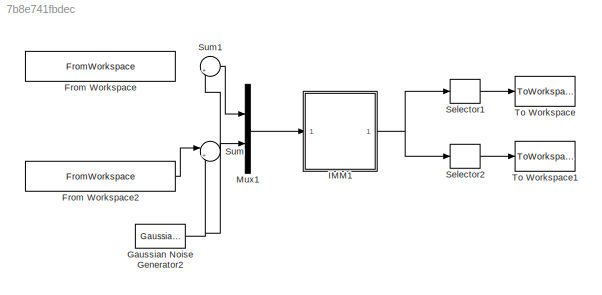
MODEL slx_7b8e741fbdec
KIND model
BLOCK [FromWorkspace] From Workspace
  SampleTime = 0
  VariableName = [obv_traj1(:,1),obv_traj1(:,2)]
BLOCK [FromWorkspace] From Workspace2
  SampleTime = 0
  VariableName = [obv_traj1(:,1),obv_traj1(:,3)]
BLOCK [Reference] Gaussian Noise Generator2  REF=commnoisgen2/Gaussian Noise
Generator
  Ports = [0, 1]
  SourceBlock = commnoisgen2/Gaussian Noise\nGenerator
  SourceType = Gaussian Noise Generator
  Ts = 0.05
  d = noise
  frameBased = off
  m = 0
  orient = off
  outDataType = double
  s = 0
  sampPerFrame = 1
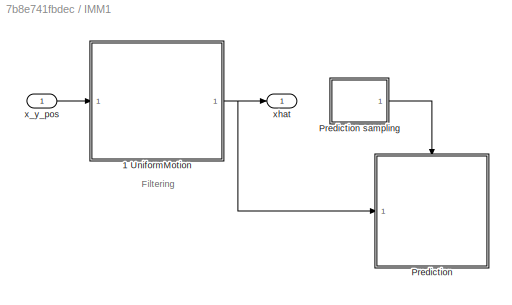
BLOCK [SubSystem] IMM1
  FunctionWithSeparateData = off
  MaskHideContents = off
  MinAlgLoopOccurrences = off
  Opaque = off
  Ports = [1, 1]
  PropExecContextOutsideSubsystem = off
  RTWSystemCode = Auto
  RequestExecContextInheritance = off
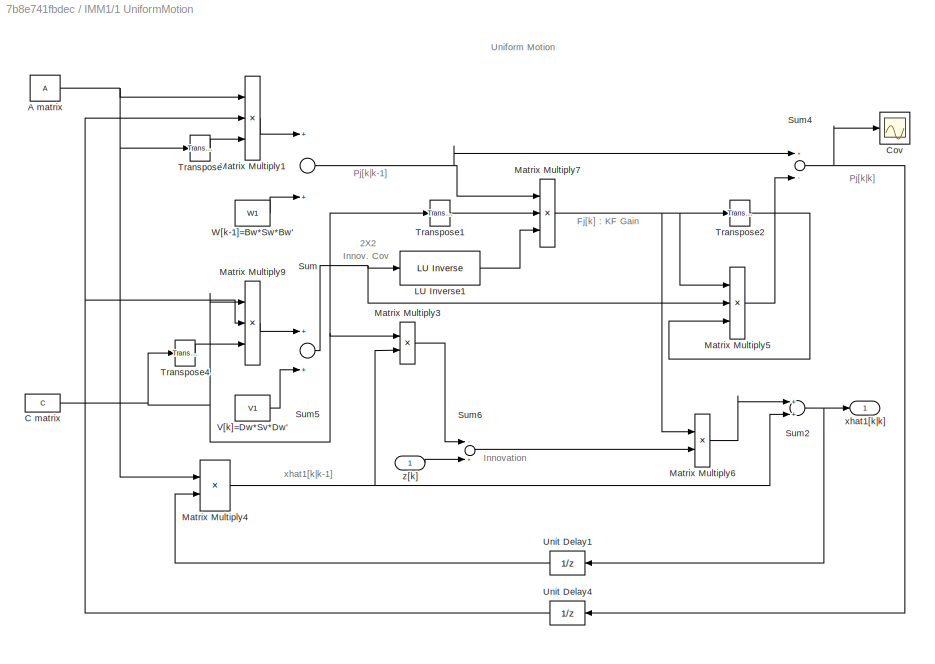
BLOCK [SubSystem] IMM1/1 UniformMotion 
  FunctionWithSeparateData = off
  MaskHideContents = off
  MinAlgLoopOccurrences = off
  Opaque = off
  Ports = [1, 1]
  PropExecContextOutsideSubsystem = off
  RTWSystemCode = Auto
  RequestExecContextInheritance = off
BLOCK [Reference] IMM1/1 UniformMotion / LU Inverse1  REF=dspinverses/ LU Inverse
  Ports = [1, 1]
  SourceBlock = dspinverses/ LU Inverse
  SourceType = LU Inverse
BLOCK [Constant] IMM1/1 UniformMotion /A matrix
  Value = A
BLOCK [Constant] IMM1/1 UniformMotion /C matrix
  Value = C
BLOCK [Scope] IMM1/1 UniformMotion /Cov
  DataFormat = StructureWithTime
  Floating = off
  NumInputPorts = 1
  Ports = [1]
  SampleTime = 0
  SaveName = ScopeData3
  ShowLegends = off
BLOCK [Product] IMM1/1 UniformMotion /Matrix Multiply1
  InputSameDT = off
  Inputs = 3
  Multiplication = Matrix(*)
  OutDataTypeStr = Inherit: Inherit via internal rule
  Ports = [3, 1]
  RndMeth = Floor
  SaturateOnIntegerOverflow = off
BLOCK [Product] IMM1/1 UniformMotion /Matrix Multiply3
  InputSameDT = off
  Multiplication = Matrix(*)
  OutDataTypeStr = Inherit: Inherit via internal rule
  Ports = [2, 1]
  RndMeth = Floor
  SaturateOnIntegerOverflow = off
BLOCK [Product] IMM1/1 UniformMotion /Matrix Multiply4
  InputSameDT = off
  Multiplication = Matrix(*)
  OutDataTypeStr = Inherit: Inherit via internal rule
  Ports = [2, 1]
  RndMeth = Floor
  SaturateOnIntegerOverflow = off
BLOCK [Product] IMM1/1 UniformMotion /Matrix Multiply5
  InputSameDT = off
  Inputs = 3
  Multiplication = Matrix(*)
  OutDataTypeStr = Inherit: Inherit via internal rule
  Ports = [3, 1]
  RndMeth = Floor
  SaturateOnIntegerOverflow = off
BLOCK [Product] IMM1/1 UniformMotion /Matrix Multiply6
  InputSameDT = off
  Multiplication = Matrix(*)
  OutDataTypeStr = Inherit: Inherit via internal rule
  Ports = [2, 1]
  RndMeth = Floor
  SaturateOnIntegerOverflow = off
BLOCK [Product] IMM1/1 UniformMotion /Matrix Multiply7
  InputSameDT = off
  Inputs = 3
  Multiplication = Matrix(*)
  OutDataTypeStr = Inherit: Inherit via internal rule
  Ports = [3, 1]
  RndMeth = Floor
  SaturateOnIntegerOverflow = off
BLOCK [Product] IMM1/1 UniformMotion /Matrix Multiply9
  InputSameDT = off
  Inputs = 3
  Multiplication = Matrix(*)
  OutDataTypeStr = Inherit: Inherit via internal rule
  Ports = [3, 1]
  RndMeth = Floor
  SaturateOnIntegerOverflow = off
BLOCK [Sum] IMM1/1 UniformMotion /Sum
  InputSameDT = off
  OutDataTypeStr = Inherit: Inherit via internal rule
  Ports = [2, 1]
BLOCK [Sum] IMM1/1 UniformMotion /Sum2
  InputSameDT = off
  OutDataTypeStr = Inherit: Inherit via internal rule
  Ports = [2, 1]
BLOCK [Sum] IMM1/1 UniformMotion /Sum4
  InputSameDT = off
  Inputs = +-
  OutDataTypeStr = Inherit: Inherit via internal rule
  Ports = [2, 1]
BLOCK [Sum] IMM1/1 UniformMotion /Sum5
  InputSameDT = off
  OutDataTypeStr = Inherit: Inherit via internal rule
  Ports = [2, 1]
BLOCK [Sum] IMM1/1 UniformMotion /Sum6
  InputSameDT = off
  Inputs = -+
  OutDataTypeStr = Inherit: Inherit via internal rule
  Ports = [2, 1]
BLOCK [Reference] IMM1/1 UniformMotion /Transpose  REF=dspmtrx3/Transpose
  Hermitian = off
  Ports = [1, 1]
  SourceBlock = dspmtrx3/Transpose
  SourceType = Transpose
  overflowFlag = off
BLOCK [Reference] IMM1/1 UniformMotion /Transpose1  REF=dspmtrx3/Transpose
  Hermitian = off
  Ports = [1, 1]
  SourceBlock = dspmtrx3/Transpose
  SourceType = Transpose
  overflowFlag = off
BLOCK [Reference] IMM1/1 UniformMotion /Transpose2  REF=dspmtrx3/Transpose
  Hermitian = off
  Ports = [1, 1]
  SourceBlock = dspmtrx3/Transpose
  SourceType = Transpose
  overflowFlag = off
BLOCK [Reference] IMM1/1 UniformMotion /Transpose4  REF=dspmtrx3/Transpose
  Hermitian = off
  Ports = [1, 1]
  SourceBlock = dspmtrx3/Transpose
  SourceType = Transpose
  overflowFlag = off
BLOCK [UnitDelay] IMM1/1 UniformMotion /Unit Delay1
  InitialCondition = xhat_init
  SampleTime = -1
BLOCK [UnitDelay] IMM1/1 UniformMotion /Unit Delay4
  InitialCondition = P_init
  SampleTime = -1
BLOCK [Constant] IMM1/1 UniformMotion /V[k]=Dw*Sv*Dw'
  Value = V1
BLOCK [Constant] IMM1/1 UniformMotion /W[k-1]=Bw*Sw*Bw' 
  Value = W1
BLOCK [Outport] IMM1/1 UniformMotion /xhat1[k|k]
  IconDisplay = Port number
BLOCK [Inport] IMM1/1 UniformMotion /z[k]
  IconDisplay = Port number
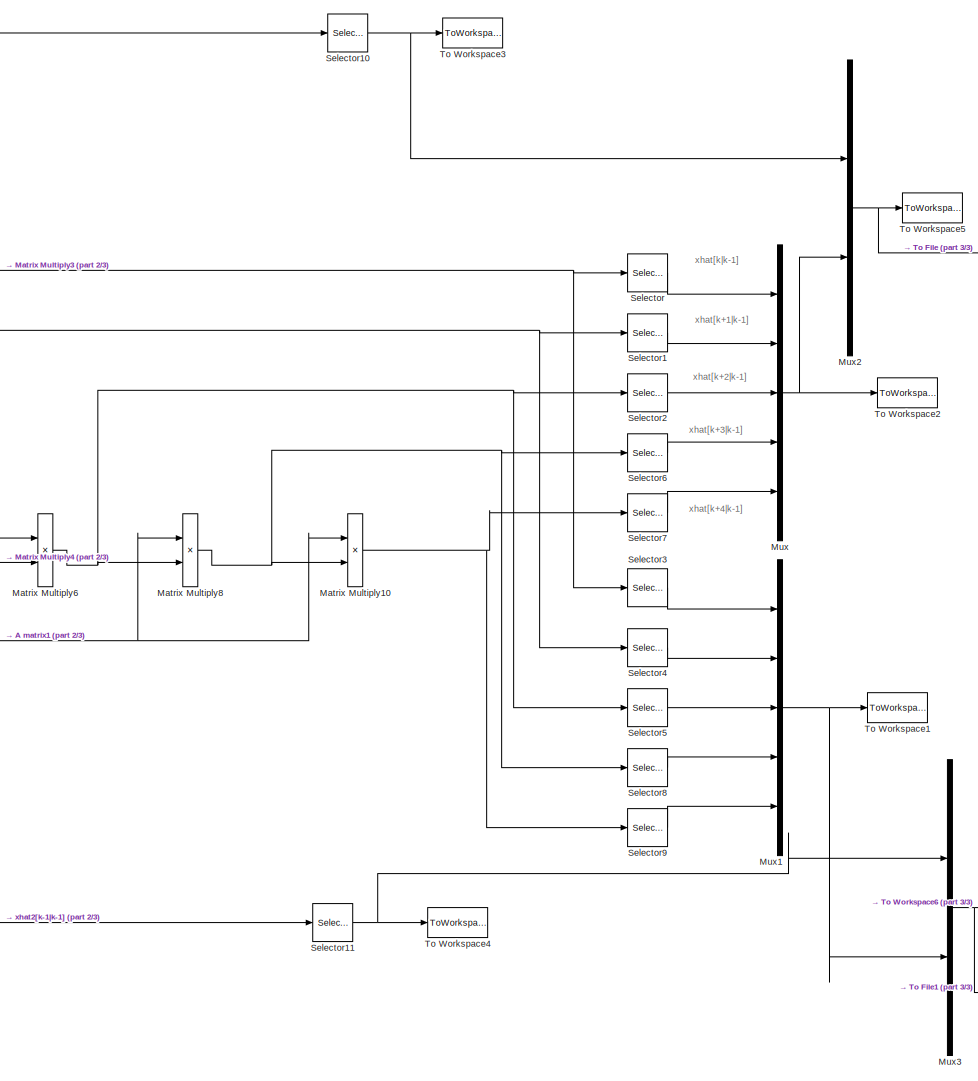
[diagram: IMM1/Prediction - part 1/3, center side, full height]
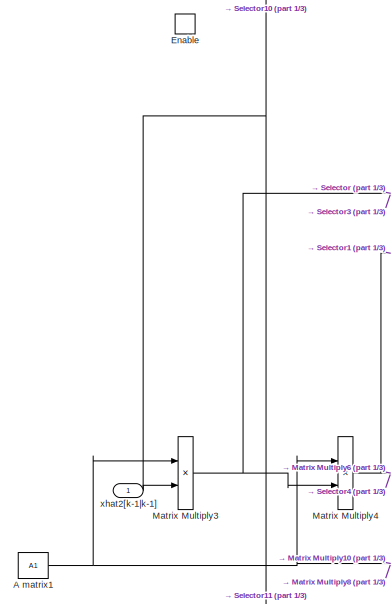
[diagram: IMM1/Prediction - part 2/3, middle left region]
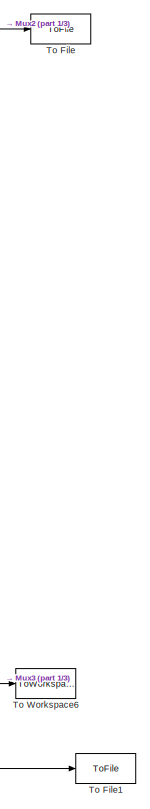
[diagram: IMM1/Prediction - part 3/3, right side, full height]
BLOCK [SubSystem] IMM1/Prediction
  FunctionWithSeparateData = off
  MaskHideContents = off
  MinAlgLoopOccurrences = off
  Opaque = off
  Ports = [1, 0, 1]
  PropExecContextOutsideSubsystem = off
  RTWSystemCode = Auto
  RequestExecContextInheritance = off
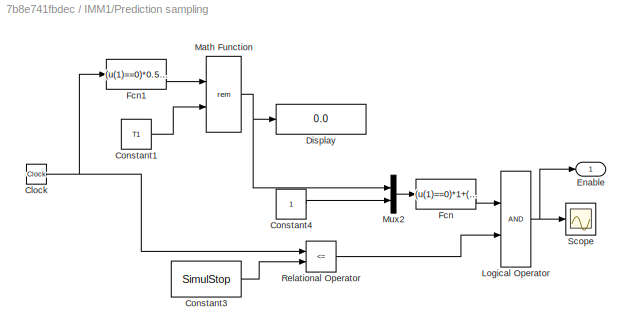
BLOCK [SubSystem] IMM1/Prediction sampling
  FunctionWithSeparateData = off
  MaskHideContents = off
  MinAlgLoopOccurrences = off
  Opaque = off
  Ports = [0, 1]
  PropExecContextOutsideSubsystem = off
  RTWSystemCode = Auto
  RequestExecContextInheritance = off
BLOCK [Clock] IMM1/Prediction sampling/Clock
BLOCK [Constant] IMM1/Prediction sampling/Constant1
  Value = T1
BLOCK [Constant] IMM1/Prediction sampling/Constant3
  Value = SimulStop
BLOCK [Constant] IMM1/Prediction sampling/Constant4
BLOCK [Display] IMM1/Prediction sampling/Display
  Decimation = 1
  Lockdown = off
  Ports = [1]
BLOCK [Outport] IMM1/Prediction sampling/Enable
  IconDisplay = Port number
BLOCK [Fcn] IMM1/Prediction sampling/Fcn
  Expr = (u(1)==0)*1+(!u(1)==0)*0
BLOCK [Fcn] IMM1/Prediction sampling/Fcn1
  Expr = (u(1)==0)*0.5+(!u(1)==0)*u(1)
BLOCK [Logic] IMM1/Prediction sampling/Logical Operator
  AllPortsSameDT = off
  OutDataTypeStr = boolean
  Ports = [2, 1]
BLOCK [Math] IMM1/Prediction sampling/Math Function
  Operator = rem
  Ports = [2, 1]
BLOCK [Mux] IMM1/Prediction sampling/Mux2
  DisplayOption = bar
  Inputs = 2
  Ports = [2, 1]
BLOCK [RelationalOperator] IMM1/Prediction sampling/Relational Operator
  InputSameDT = off
  Operator = <=
  OutDataTypeStr = boolean
  Ports = [2, 1]
BLOCK [Scope] IMM1/Prediction sampling/Scope
  DataFormat = StructureWithTime
  Floating = off
  NumInputPorts = 1
  Ports = [1]
  SampleTime = 0
  SaveName = ScopeData2
  ShowLegends = off
BLOCK [Constant] IMM1/Prediction/A matrix1
  Value = A1
BLOCK [EnablePort] IMM1/Prediction/Enable
  Ports = []
BLOCK [Product] IMM1/Prediction/Matrix Multiply10
  InputSameDT = off
  Multiplication = Matrix(*)
  OutDataTypeStr = Inherit: Inherit via internal rule
  Ports = [2, 1]
  RndMeth = Floor
  SaturateOnIntegerOverflow = off
BLOCK [Product] IMM1/Prediction/Matrix Multiply3
  InputSameDT = off
  Multiplication = Matrix(*)
  OutDataTypeStr = Inherit: Inherit via internal rule
  Ports = [2, 1]
  RndMeth = Floor
  SaturateOnIntegerOverflow = off
BLOCK [Product] IMM1/Prediction/Matrix Multiply4
  InputSameDT = off
  Multiplication = Matrix(*)
  OutDataTypeStr = Inherit: Inherit via internal rule
  Ports = [2, 1]
  RndMeth = Floor
  SaturateOnIntegerOverflow = off
BLOCK [Product] IMM1/Prediction/Matrix Multiply6
  InputSameDT = off
  Multiplication = Matrix(*)
  OutDataTypeStr = Inherit: Inherit via internal rule
  Ports = [2, 1]
  RndMeth = Floor
  SaturateOnIntegerOverflow = off
BLOCK [Product] IMM1/Prediction/Matrix Multiply8
  InputSameDT = off
  Multiplication = Matrix(*)
  OutDataTypeStr = Inherit: Inherit via internal rule
  Ports = [2, 1]
  RndMeth = Floor
  SaturateOnIntegerOverflow = off
BLOCK [Mux] IMM1/Prediction/Mux
  DisplayOption = bar
  Inputs = 5
  Ports = [5, 1]
BLOCK [Mux] IMM1/Prediction/Mux1
  DisplayOption = bar
  Inputs = 5
  Ports = [5, 1]
BLOCK [Mux] IMM1/Prediction/Mux2
  DisplayOption = bar
  Inputs = 2
  Ports = [2, 1]
BLOCK [Mux] IMM1/Prediction/Mux3
  DisplayOption = bar
  Inputs = 2
  Ports = [2, 1]
BLOCK [Selector] IMM1/Prediction/Selector
  IndexOptions = Index vector (dialog)
  Indices = [1]
  InputPortWidth = 4
  OutputSizes = 1
  Ports = [1, 1]
BLOCK [Selector] IMM1/Prediction/Selector1
  IndexOptions = Index vector (dialog)
  Indices = [1]
  InputPortWidth = 4
  OutputSizes = 1
  Ports = [1, 1]
BLOCK [Selector] IMM1/Prediction/Selector10
  IndexOptions = Index vector (dialog)
  Indices = [1]
  InputPortWidth = 4
  OutputSizes = 1
  Ports = [1, 1]
BLOCK [Selector] IMM1/Prediction/Selector11
  IndexOptions = Index vector (dialog)
  Indices = [3]
  InputPortWidth = 4
  OutputSizes = 1
  Ports = [1, 1]
BLOCK [Selector] IMM1/Prediction/Selector2
  IndexOptions = Index vector (dialog)
  Indices = [1]
  InputPortWidth = 4
  OutputSizes = 1
  Ports = [1, 1]
BLOCK [Selector] IMM1/Prediction/Selector3
  IndexOptions = Index vector (dialog)
  Indices = [3]
  InputPortWidth = 4
  OutputSizes = 1
  Ports = [1, 1]
BLOCK [Selector] IMM1/Prediction/Selector4
  IndexOptions = Index vector (dialog)
  Indices = [3]
  InputPortWidth = 4
  OutputSizes = 1
  Ports = [1, 1]
BLOCK [Selector] IMM1/Prediction/Selector5
  IndexOptions = Index vector (dialog)
  Indices = [3]
  InputPortWidth = 4
  OutputSizes = 1
  Ports = [1, 1]
BLOCK [Selector] IMM1/Prediction/Selector6
  IndexOptions = Index vector (dialog)
  Indices = [1]
  InputPortWidth = 4
  OutputSizes = 1
  Ports = [1, 1]
BLOCK [Selector] IMM1/Prediction/Selector7
  IndexOptions = Index vector (dialog)
  Indices = [1]
  InputPortWidth = 4
  OutputSizes = 1
  Ports = [1, 1]
BLOCK [Selector] IMM1/Prediction/Selector8
  IndexOptions = Index vector (dialog)
  Indices = [3]
  InputPortWidth = 4
  OutputSizes = 1
  Ports = [1, 1]
BLOCK [Selector] IMM1/Prediction/Selector9
  IndexOptions = Index vector (dialog)
  Indices = [3]
  InputPortWidth = 4
  OutputSizes = 1
  Ports = [1, 1]
BLOCK [ToFile] IMM1/Prediction/To File
  Filename = x_pos_pre1.mat
  MatrixName = x_pos_pre1
  Ports = [1]
BLOCK [ToFile] IMM1/Prediction/To File1
  Filename = y_pos_pre1.mat
  MatrixName = y_pos_pre1
  Ports = [1]
BLOCK [ToWorkspace] IMM1/Prediction/To Workspace1
  MaxDataPoints = inf
  Ports = [1]
  SampleTime = -1
  VariableName = y_pos_pre
BLOCK [ToWorkspace] IMM1/Prediction/To Workspace2
  MaxDataPoints = inf
  Ports = [1]
  SampleTime = -1
  VariableName = x_pos_pre
BLOCK [ToWorkspace] IMM1/Prediction/To Workspace3
  MaxDataPoints = inf
  Ports = [1]
  SampleTime = -1
  VariableName = x_pos_est
BLOCK [ToWorkspace] IMM1/Prediction/To Workspace4
  MaxDataPoints = inf
  Ports = [1]
  SampleTime = -1
  VariableName = y_pos_est
BLOCK [ToWorkspace] IMM1/Prediction/To Workspace5
  MaxDataPoints = inf
  Ports = [1]
  SampleTime = -1
  VariableName = x_pos_pre1
BLOCK [ToWorkspace] IMM1/Prediction/To Workspace6
  MaxDataPoints = inf
  Ports = [1]
  SampleTime = -1
  VariableName = y_pos_pre1
BLOCK [Inport] IMM1/Prediction/xhat2[k-1|k-1]
  IconDisplay = Port number
BLOCK [Inport] IMM1/x_y_pos
  IconDisplay = Port number
BLOCK [Outport] IMM1/xhat
  IconDisplay = Port number
BLOCK [Mux] Mux1
  DisplayOption = bar
  Inputs = 2
  Ports = [2, 1]
BLOCK [Selector] Selector1
  IndexOptions = Index vector (dialog)
  Indices = [1 2]
  InputPortWidth = 4
  OutputSizes = 1
  Ports = [1, 1]
BLOCK [Selector] Selector2
  IndexOptions = Index vector (dialog)
  Indices = [3 4]
  InputPortWidth = 4
  OutputSizes = 1
  Ports = [1, 1]
BLOCK [Sum] Sum
  IconShape = round
  InputSameDT = off
  Inputs = |++
  OutDataTypeStr = Inherit: Inherit via internal rule
  Ports = [2, 1]
  SaturateOnIntegerOverflow = off
BLOCK [Sum] Sum1
  IconShape = round
  InputSameDT = off
  Inputs = |++
  OutDataTypeStr = Inherit: Inherit via internal rule
  Ports = [2, 1]
  SaturateOnIntegerOverflow = off
BLOCK [ToWorkspace] To Workspace
  MaxDataPoints = inf
  Ports = [1]
  SampleTime = -1
  VariableName = x_est
BLOCK [ToWorkspace] To Workspace1
  MaxDataPoints = inf
  Ports = [1]
  SampleTime = -1
  VariableName = y_est
ANNOTATION IMM1: Filtering
ANNOTATION IMM1/1 UniformMotion : 2X2
ANNOTATION IMM1/1 UniformMotion : Fj[k] : KF Gain
ANNOTATION IMM1/1 UniformMotion : Innov. Cov
ANNOTATION IMM1/1 UniformMotion : Innovation
ANNOTATION IMM1/1 UniformMotion : Pj[k|k-1]
ANNOTATION IMM1/1 UniformMotion : Pj[k|k]
ANNOTATION IMM1/1 UniformMotion : Uniform Motion
ANNOTATION IMM1/1 UniformMotion : xhat1[k|k-1]
ANNOTATION IMM1/Prediction: xhat[k+1|k-1]
ANNOTATION IMM1/Prediction: xhat[k+2|k-1]
ANNOTATION IMM1/Prediction: xhat[k+3|k-1]
ANNOTATION IMM1/Prediction: xhat[k+4|k-1]
ANNOTATION IMM1/Prediction: xhat[k|k-1]
LINE From Workspace2:1 -> Sum:1
NET Gaussian Noise Generator2:1 -> Sum1:2, Sum:2
LINE IMM1/1 UniformMotion / LU Inverse1:1 -> IMM1/1 UniformMotion /Matrix Multiply7:3
NET IMM1/1 UniformMotion /A matrix:1 -> IMM1/1 UniformMotion /Matrix Multiply1:1, IMM1/1 UniformMotion /Matrix Multiply4:1, IMM1/1 UniformMotion /Transpose:1
NET IMM1/1 UniformMotion /C matrix:1 -> IMM1/1 UniformMotion /Matrix Multiply3:1, IMM1/1 UniformMotion /Matrix Multiply9:1, IMM1/1 UniformMotion /Transpose1:1, IMM1/1 UniformMotion /Transpose4:1
LINE IMM1/1 UniformMotion /Matrix Multiply1:1 -> IMM1/1 UniformMotion /Sum:1
LINE IMM1/1 UniformMotion /Matrix Multiply3:1 -> IMM1/1 UniformMotion /Sum6:1
NET IMM1/1 UniformMotion /Matrix Multiply4:1 -> IMM1/1 UniformMotion /Matrix Multiply3:2, IMM1/1 UniformMotion /Sum2:2
LINE IMM1/1 UniformMotion /Matrix Multiply5:1 -> IMM1/1 UniformMotion /Sum4:2
LINE IMM1/1 UniformMotion /Matrix Multiply6:1 -> IMM1/1 UniformMotion /Sum2:1
NET IMM1/1 UniformMotion /Matrix Multiply7:1 -> IMM1/1 UniformMotion /Matrix Multiply5:1, IMM1/1 UniformMotion /Matrix Multiply6:1, IMM1/1 UniformMotion /Transpose2:1
LINE IMM1/1 UniformMotion /Matrix Multiply9:1 -> IMM1/1 UniformMotion /Sum5:1
NET IMM1/1 UniformMotion /Sum2:1 -> IMM1/1 UniformMotion /Unit Delay1:1, IMM1/1 UniformMotion /xhat1[k|k]:1
NET IMM1/1 UniformMotion /Sum4:1 -> IMM1/1 UniformMotion /Cov:1, IMM1/1 UniformMotion /Unit Delay4:1
NET IMM1/1 UniformMotion /Sum5:1 -> IMM1/1 UniformMotion / LU Inverse1:1, IMM1/1 UniformMotion /Matrix Multiply5:2
LINE IMM1/1 UniformMotion /Sum6:1 -> IMM1/1 UniformMotion /Matrix Multiply6:2
NET IMM1/1 UniformMotion /Sum:1 -> IMM1/1 UniformMotion /Matrix Multiply7:1, IMM1/1 UniformMotion /Sum4:1
LINE IMM1/1 UniformMotion /Transpose1:1 -> IMM1/1 UniformMotion /Matrix Multiply7:2
LINE IMM1/1 UniformMotion /Transpose2:1 -> IMM1/1 UniformMotion /Matrix Multiply5:3
LINE IMM1/1 UniformMotion /Transpose4:1 -> IMM1/1 UniformMotion /Matrix Multiply9:3
LINE IMM1/1 UniformMotion /Transpose:1 -> IMM1/1 UniformMotion /Matrix Multiply1:3
LINE IMM1/1 UniformMotion /Unit Delay1:1 -> IMM1/1 UniformMotion /Matrix Multiply4:2
NET IMM1/1 UniformMotion /Unit Delay4:1 -> IMM1/1 UniformMotion /Matrix Multiply1:2, IMM1/1 UniformMotion /Matrix Multiply9:2
LINE IMM1/1 UniformMotion /V[k]=Dw*Sv*Dw':1 -> IMM1/1 UniformMotion /Sum5:2
LINE IMM1/1 UniformMotion /W[k-1]=Bw*Sw*Bw' :1 -> IMM1/1 UniformMotion /Sum:2
LINE IMM1/1 UniformMotion /z[k]:1 -> IMM1/1 UniformMotion /Sum6:2
NET IMM1/1 UniformMotion :1 -> IMM1/Prediction:1, IMM1/xhat:1
NET IMM1/Prediction sampling/Clock:1 -> IMM1/Prediction sampling/Fcn1:1, IMM1/Prediction sampling/Relational Operator:1
LINE IMM1/Prediction sampling/Constant1:1 -> IMM1/Prediction sampling/Math Function:2
LINE IMM1/Prediction sampling/Constant3:1 -> IMM1/Prediction sampling/Relational Operator:2
LINE IMM1/Prediction sampling/Constant4:1 -> IMM1/Prediction sampling/Mux2:2
LINE IMM1/Prediction sampling/Fcn1:1 -> IMM1/Prediction sampling/Math Function:1
LINE IMM1/Prediction sampling/Fcn:1 -> IMM1/Prediction sampling/Logical Operator:1
NET IMM1/Prediction sampling/Logical Operator:1 -> IMM1/Prediction sampling/Enable:1, IMM1/Prediction sampling/Scope:1
NET IMM1/Prediction sampling/Math Function:1 -> IMM1/Prediction sampling/Display:1, IMM1/Prediction sampling/Mux2:1
LINE IMM1/Prediction sampling/Mux2:1 -> IMM1/Prediction sampling/Fcn:1
LINE IMM1/Prediction sampling/Relational Operator:1 -> IMM1/Prediction sampling/Logical Operator:2
LINE IMM1/Prediction sampling:1 -> IMM1/Prediction:enable
NET IMM1/Prediction/A matrix1:1 -> IMM1/Prediction/Matrix Multiply10:1, IMM1/Prediction/Matrix Multiply3:1, IMM1/Prediction/Matrix Multiply4:1, IMM1/Prediction/Matrix Multiply6:1, IMM1/Prediction/Matrix Multiply8:1
NET IMM1/Prediction/Matrix Multiply10:1 -> IMM1/Prediction/Selector7:1, IMM1/Prediction/Selector9:1
NET IMM1/Prediction/Matrix Multiply3:1 -> IMM1/Prediction/Matrix Multiply4:2, IMM1/Prediction/Selector3:1, IMM1/Prediction/Selector:1
NET IMM1/Prediction/Matrix Multiply4:1 -> IMM1/Prediction/Matrix Multiply6:2, IMM1/Prediction/Selector1:1, IMM1/Prediction/Selector4:1
NET IMM1/Prediction/Matrix Multiply6:1 -> IMM1/Prediction/Matrix Multiply8:2, IMM1/Prediction/Selector2:1, IMM1/Prediction/Selector5:1
NET IMM1/Prediction/Matrix Multiply8:1 -> IMM1/Prediction/Matrix Multiply10:2, IMM1/Prediction/Selector6:1, IMM1/Prediction/Selector8:1
NET IMM1/Prediction/Mux1:1 -> IMM1/Prediction/Mux3:2, IMM1/Prediction/To Workspace1:1
NET IMM1/Prediction/Mux2:1 -> IMM1/Prediction/To File:1, IMM1/Prediction/To Workspace5:1
NET IMM1/Prediction/Mux3:1 -> IMM1/Prediction/To File1:1, IMM1/Prediction/To Workspace6:1
NET IMM1/Prediction/Mux:1 -> IMM1/Prediction/Mux2:2, IMM1/Prediction/To Workspace2:1
NET IMM1/Prediction/Selector10:1 -> IMM1/Prediction/Mux2:1, IMM1/Prediction/To Workspace3:1
NET IMM1/Prediction/Selector11:1 -> IMM1/Prediction/Mux3:1, IMM1/Prediction/To Workspace4:1
LINE IMM1/Prediction/Selector1:1 -> IMM1/Prediction/Mux:2
LINE IMM1/Prediction/Selector2:1 -> IMM1/Prediction/Mux:3
LINE IMM1/Prediction/Selector3:1 -> IMM1/Prediction/Mux1:1
LINE IMM1/Prediction/Selector4:1 -> IMM1/Prediction/Mux1:2
LINE IMM1/Prediction/Selector5:1 -> IMM1/Prediction/Mux1:3
LINE IMM1/Prediction/Selector6:1 -> IMM1/Prediction/Mux:4
LINE IMM1/Prediction/Selector7:1 -> IMM1/Prediction/Mux:5
LINE IMM1/Prediction/Selector8:1 -> IMM1/Prediction/Mux1:4
LINE IMM1/Prediction/Selector9:1 -> IMM1/Prediction/Mux1:5
LINE IMM1/Prediction/Selector:1 -> IMM1/Prediction/Mux:1
NET IMM1/Prediction/xhat2[k-1|k-1]:1 -> IMM1/Prediction/Matrix Multiply3:2, IMM1/Prediction/Selector10:1, IMM1/Prediction/Selector11:1
LINE IMM1/x_y_pos:1 -> IMM1/1 UniformMotion :1
NET IMM1:1 -> Selector1:1, Selector2:1
LINE Mux1:1 -> IMM1:1
LINE Selector1:1 -> To Workspace:1
LINE Selector2:1 -> To Workspace1:1
LINE Sum1:1 -> Mux1:1
LINE Sum:1 -> Mux1:2
note: NET lines group one-source signal fan-out (src -> all destinations, sorted); 1:1 wires keep LINE
